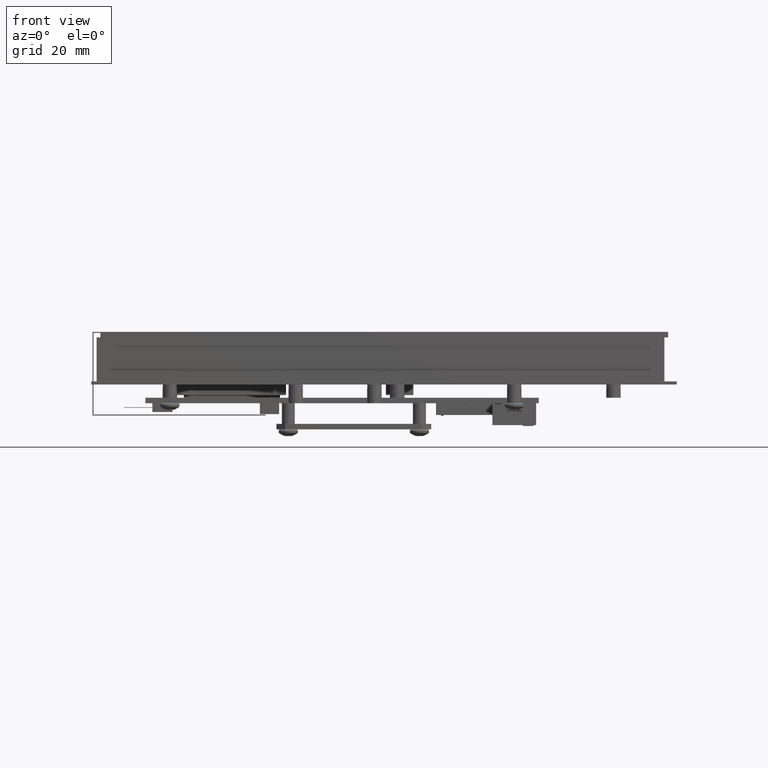
[diagram: clean part render]
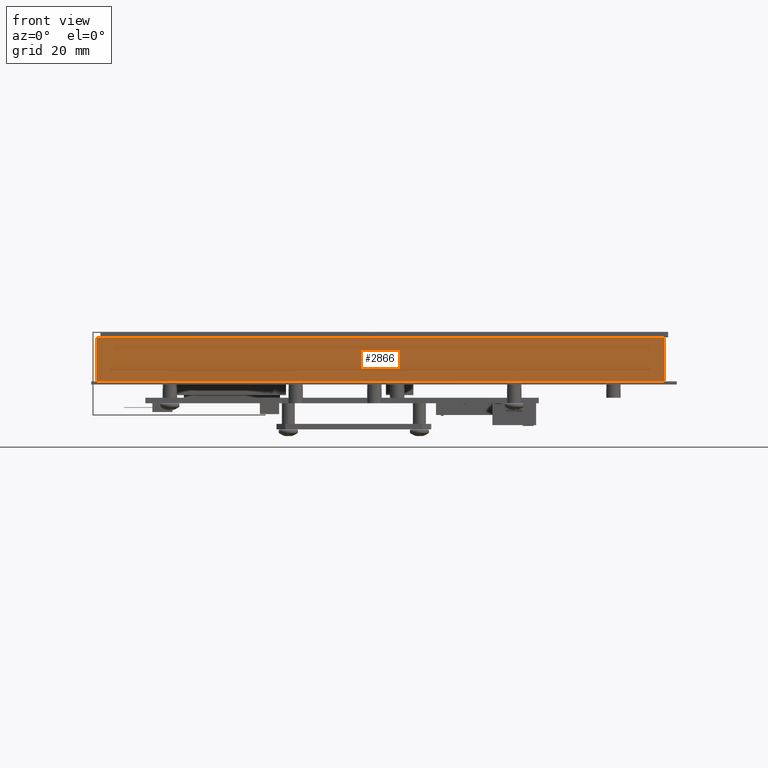
[diagram: same view with one face highlighted and labeled with its STEP entity id]
A machine part, front view. The second image highlights one B-rep face of the part: STEP entity #2866.
In plain terms, the highlighted planar face has unit normal (-0, 1, 0).
Its self-contained STEP definition (entity closure, byte-faithful):
#2866 = ADVANCED_FACE ( 'NONE', ( #13909 ), #13910, .F. ) ;
#3636 = VECTOR ( 'NONE', #8666, 39.37007874015748100 ) ;
#3639 = VECTOR ( 'NONE', #8675, 39.37007874015748100 ) ;
#3641 = VECTOR ( 'NONE', #8678, 39.37007874015748100 ) ;
#4484 = VECTOR ( 'NONE', #8652, 39.37007874015748100 ) ;
#5739 = VERTEX_POINT ( 'NONE', #14799 ) ;
#5741 = VERTEX_POINT ( 'NONE', #14801 ) ;
#5744 = VERTEX_POINT ( 'NONE', #14804 ) ;
#5749 = VERTEX_POINT ( 'NONE', #14809 ) ;
#6270 = AXIS2_PLACEMENT_3D ( 'NONE', #13889, #13912, #13913 ) ;
#8642 = LINE ( 'NONE', #8650, #4484 ) ;
#8650 = CARTESIAN_POINT ( 'NONE',  ( -3.248031496062992600, -2.047244094488188900, 0.0000000000000000000 ) ) ;
#8652 = DIRECTION ( 'NONE',  ( 1.000000000000000000, 4.205390244792259600E-017, 0.0000000000000000000 ) ) ;
#8664 = LINE ( 'NONE', #8665, #3636 ) ;
#8665 = CARTESIAN_POINT ( 'NONE',  ( -3.248031496062992600, -2.047244094488188900, 0.5039370078740157400 ) ) ;
#8666 = DIRECTION ( 'NONE',  ( -0.0000000000000000000, -0.0000000000000000000, -1.000000000000000000 ) ) ;
#8673 = LINE ( 'NONE', #8674, #3639 ) ;
#8674 = CARTESIAN_POINT ( 'NONE',  ( 3.248031496062992600, -2.047244094488188400, 0.5039370078740157400 ) ) ;
#8675 = DIRECTION ( 'NONE',  ( -0.0000000000000000000, -0.0000000000000000000, -1.000000000000000000 ) ) ;
#8676 = LINE ( 'NONE', #8677, #3641 ) ;
#8677 = CARTESIAN_POINT ( 'NONE',  ( -3.248031496062992600, -2.047244094488188900, 0.5039370078740157400 ) ) ;
#8678 = DIRECTION ( 'NONE',  ( 1.000000000000000000, 4.205390244792259600E-017, 0.0000000000000000000 ) ) ;
#11896 = EDGE_CURVE ( 'NONE', #5741, #5749, #8642, .T. ) ;
#11904 = EDGE_CURVE ( 'NONE', #5739, #5741, #8664, .T. ) ;
#11910 = EDGE_CURVE ( 'NONE', #5744, #5749, #8673, .T. ) ;
#11912 = EDGE_CURVE ( 'NONE', #5739, #5744, #8676, .T. ) ;
#13889 = CARTESIAN_POINT ( 'NONE',  ( -3.248031496062992600, -2.047244094488188900, 0.5039370078740157400 ) ) ;
#13909 = FACE_OUTER_BOUND ( 'NONE', #16643, .T. ) ;
#13910 = PLANE ( 'NONE',  #6270 ) ;
#13912 = DIRECTION ( 'NONE',  ( -4.205390244792259600E-017, 1.000000000000000000, 0.0000000000000000000 ) ) ;
#13913 = DIRECTION ( 'NONE',  ( -1.000000000000000000, -4.205390244792259600E-017, 0.0000000000000000000 ) ) ;
#14799 = CARTESIAN_POINT ( 'NONE',  ( -3.248031496062992600, -2.047244094488188900, 0.5039370078740157400 ) ) ;
#14801 = CARTESIAN_POINT ( 'NONE',  ( -3.248031496062992600, -2.047244094488188900, 0.0000000000000000000 ) ) ;
#14804 = CARTESIAN_POINT ( 'NONE',  ( 3.248031496062992600, -2.047244094488188400, 0.5039370078740157400 ) ) ;
#14809 = CARTESIAN_POINT ( 'NONE',  ( 3.248031496062992600, -2.047244094488188400, 0.0000000000000000000 ) ) ;
#15950 = ORIENTED_EDGE ( 'NONE', *, *, #11904, .T. ) ;
#15955 = ORIENTED_EDGE ( 'NONE', *, *, #11912, .F. ) ;
#15958 = ORIENTED_EDGE ( 'NONE', *, *, #11896, .T. ) ;
#15959 = ORIENTED_EDGE ( 'NONE', *, *, #11910, .F. ) ;
#16643 = EDGE_LOOP ( 'NONE', ( #15958, #15959, #15955, #15950 ) ) ;